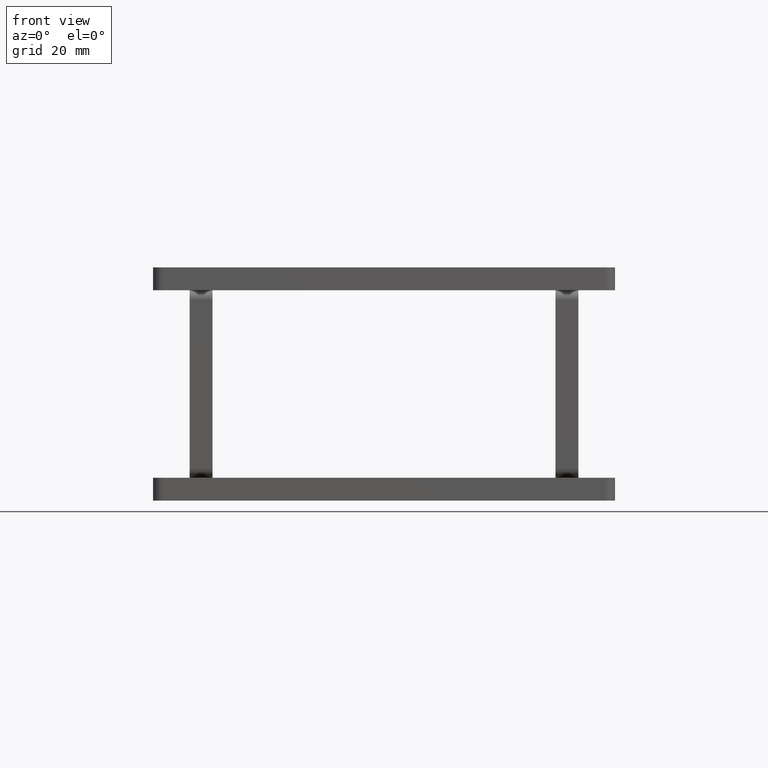
[diagram: clean part render]
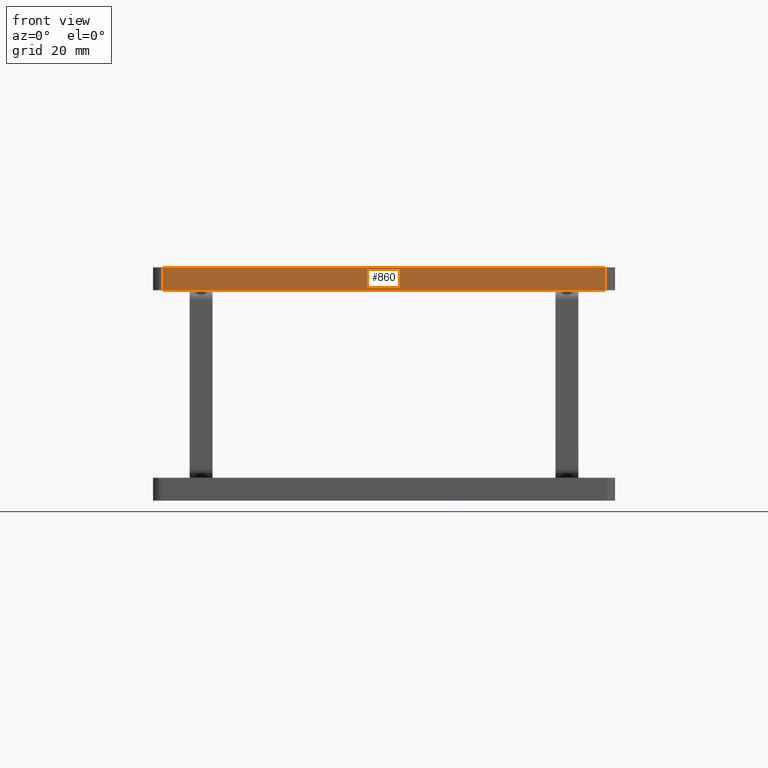
[diagram: same view with one face highlighted and labeled with its STEP entity id]
A machine part, front view. The second image highlights one B-rep face of the part: STEP entity #860.
In plain terms, the highlighted planar face has unit normal (0, -1, 0).
Its self-contained STEP definition (entity closure, byte-faithful):
#36 = EDGE_CURVE ( 'NONE', #386, #309, #2050, .T. ) ;
#172 = ORIENTED_EDGE ( 'NONE', *, *, #36, .T. ) ;
#198 = VECTOR ( 'NONE', #488, 1000.000000000000000 ) ;
#224 = LINE ( 'NONE', #1166, #1991 ) ;
#254 = DIRECTION ( 'NONE',  ( -0.000000000000000000, -0.000000000000000000, -1.000000000000000000 ) ) ;
#258 = CARTESIAN_POINT ( 'NONE',  ( 48.50000000000001421, -56.50000000000000000, -5.000000000000000000 ) ) ;
#306 = EDGE_LOOP ( 'NONE', ( #1986, #2095, #976, #172 ) ) ;
#309 = VERTEX_POINT ( 'NONE', #945 ) ;
#386 = VERTEX_POINT ( 'NONE', #1278 ) ;
#440 = VECTOR ( 'NONE', #1121, 1000.000000000000000 ) ;
#488 = DIRECTION ( 'NONE',  ( -0.000000000000000000, 0.000000000000000000, 1.000000000000000000 ) ) ;
#537 = PLANE ( 'NONE',  #1525 ) ;
#548 = CARTESIAN_POINT ( 'NONE',  ( -48.49999999999998579, -56.50000000000000000, -5.000000000000000000 ) ) ;
#801 = VERTEX_POINT ( 'NONE', #548 ) ;
#860 = ADVANCED_FACE ( 'NONE', ( #1654 ), #537, .T. ) ;
#897 = DIRECTION ( 'NONE',  ( 0.000000000000000000, -1.000000000000000000, 0.000000000000000000 ) ) ;
#945 = CARTESIAN_POINT ( 'NONE',  ( 48.50000000000001421, -56.50000000000000000, 0.000000000000000000 ) ) ;
#976 = ORIENTED_EDGE ( 'NONE', *, *, #2039, .T. ) ;
#990 = CARTESIAN_POINT ( 'NONE',  ( -50.49999999999998579, -56.50000000000000000, 0.000000000000000000 ) ) ;
#1005 = CARTESIAN_POINT ( 'NONE',  ( -48.49999999999998579, -56.50000000000000000, 0.000000000000000000 ) ) ;
#1121 = DIRECTION ( 'NONE',  ( 1.000000000000000000, 0.000000000000000000, 0.000000000000000000 ) ) ;
#1166 = CARTESIAN_POINT ( 'NONE',  ( -48.49999999999998579, -56.50000000000000000, -5.000000000000000000 ) ) ;
#1256 = CARTESIAN_POINT ( 'NONE',  ( -50.49999999999998579, -56.50000000000000000, -5.000000000000000000 ) ) ;
#1278 = CARTESIAN_POINT ( 'NONE',  ( 48.50000000000001421, -56.50000000000000000, -5.000000000000000000 ) ) ;
#1298 = CARTESIAN_POINT ( 'NONE',  ( -50.49999999999998579, -56.50000000000000000, -5.000000000000000000 ) ) ;
#1303 = VECTOR ( 'NONE', #1863, 1000.000000000000000 ) ;
#1507 = LINE ( 'NONE', #1298, #440 ) ;
#1517 = LINE ( 'NONE', #990, #1303 ) ;
#1525 = AXIS2_PLACEMENT_3D ( 'NONE', #1256, #897, #1611 ) ;
#1588 = EDGE_CURVE ( 'NONE', #2207, #801, #224, .T. ) ;
#1611 = DIRECTION ( 'NONE',  ( 0.000000000000000000, -0.000000000000000000, -1.000000000000000000 ) ) ;
#1654 = FACE_OUTER_BOUND ( 'NONE', #306, .T. ) ;
#1863 = DIRECTION ( 'NONE',  ( 1.000000000000000000, 0.000000000000000000, 0.000000000000000000 ) ) ;
#1986 = ORIENTED_EDGE ( 'NONE', *, *, #2265, .F. ) ;
#1991 = VECTOR ( 'NONE', #254, 1000.000000000000000 ) ;
#2039 = EDGE_CURVE ( 'NONE', #801, #386, #1507, .T. ) ;
#2050 = LINE ( 'NONE', #258, #198 ) ;
#2095 = ORIENTED_EDGE ( 'NONE', *, *, #1588, .T. ) ;
#2207 = VERTEX_POINT ( 'NONE', #1005 ) ;
#2265 = EDGE_CURVE ( 'NONE', #2207, #309, #1517, .T. ) ;